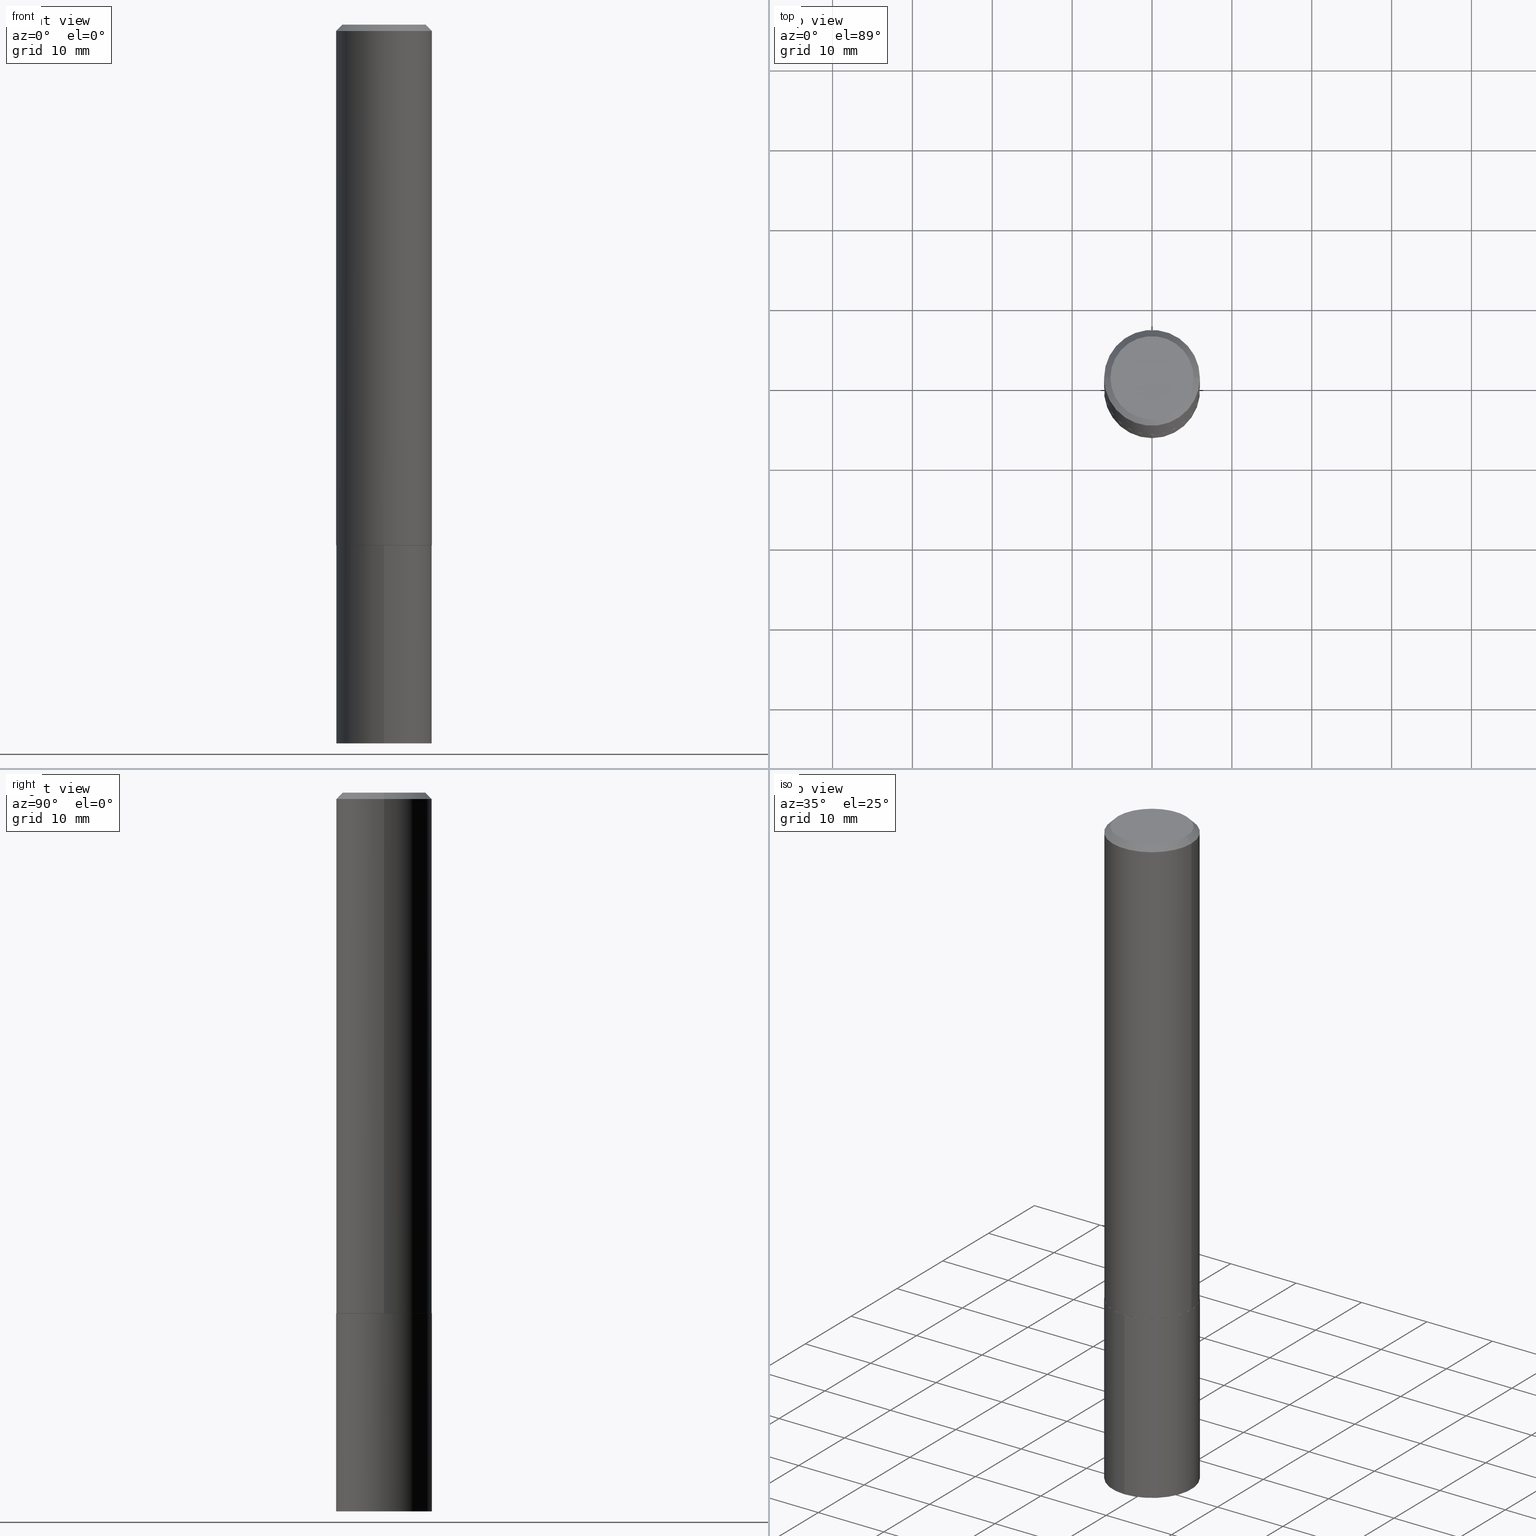
[diagram: canonical four-view strip — front | top / right | iso, engineering-drawing reading convention]
A machine part, canonical four-view strip (front | top / right | iso — engineering-drawing reading convention). The complete STEP part file that produces these views, byte-faithful:
ISO-10303-21;
HEADER;
FILE_DESCRIPTION (( 'STEP AP203' ),
    '1' );
FILE_NAME ('67167.STEP',
    '2024-04-23T12:52:20',
    ( '' ),
    ( '' ),
    'SwSTEP 2.0',
    'SolidWorks 2023',
    '' );
FILE_SCHEMA (( 'CONFIG_CONTROL_DESIGN' ));
ENDSEC;

DATA;
#1 = APPLICATION_CONTEXT ( 'configuration controlled 3d designs of mechanical parts and assemblies' ) ;
#2 = DIRECTION ( 'NONE',  ( 1.000000000000000000, -6.982962677686266711E-15, 4.876176775795936353E-29 ) ) ;
#3 = APPROVAL ( #321, 'UNSPECIFIED' ) ;
#4 = EDGE_CURVE ( 'NONE', #197, #20, #45, .T. ) ;
#5 = DIRECTION ( 'NONE',  ( -2.447102614353339399E-29, 3.489141632555693023E-15, 1.000000000000000000 ) ) ;
#6 = CARTESIAN_POINT ( 'NONE',  ( 0.2362000000000002709, -1.061131008501208223E-14, -2.566799999999999304 ) ) ;
#7 = CYLINDRICAL_SURFACE ( 'NONE', #44, 0.2361999999999999933 ) ;
#8 = EDGE_CURVE ( 'NONE', #286, #200, #307, .T. ) ;
#9 = ORGANIZATION ( 'UNSPECIFIED', 'UNSPECIFIED', '' ) ;
#10 = DIRECTION ( 'NONE',  ( 1.000000000000000000, -6.982962677686266711E-15, 4.876176775795936353E-29 ) ) ;
#11 = CARTESIAN_POINT ( 'NONE',  ( 1.678301941865443563E-15, 0.2361999999999910838, -2.567300000000000804 ) ) ;
#12 = ORIENTED_EDGE ( 'NONE', *, *, #157, .T. ) ;
#13 = CARTESIAN_POINT ( 'NONE',  ( 0.2362000000000002709, -1.061131008501208223E-14, -2.566799999999999304 ) ) ;
#14 = DIRECTION ( 'NONE',  ( -1.000000000000000000, 6.982962677686266711E-15, 0.000000000000000000 ) ) ;
#15 = ORIENTED_EDGE ( 'NONE', *, *, #341, .T. ) ;
#16 = CIRCLE ( 'NONE', #24, 0.2361999999999999933 ) ;
#17 = CALENDAR_DATE ( 2024, 23, 4 ) ;
#18 = ORIENTED_EDGE ( 'NONE', *, *, #247, .F. ) ;
#19 = CALENDAR_DATE ( 2024, 23, 4 ) ;
#20 = VERTEX_POINT ( 'NONE', #248 ) ;
#21 = MECHANICAL_CONTEXT ( 'NONE', #1, 'mechanical' ) ;
#22 = DATE_TIME_ROLE ( 'creation_date' ) ;
#23 = EDGE_CURVE ( 'NONE', #197, #127, #275, .T. ) ;
#24 = AXIS2_PLACEMENT_3D ( 'NONE', #28, #333, #208 ) ;
#25 = ORIENTED_EDGE ( 'NONE', *, *, #362, .T. ) ;
#26 = DIRECTION ( 'NONE',  ( -0.7071067811865453523, 2.468850131082234184E-15, -0.7071067811865496822 ) ) ;
#27 = APPLICATION_CONTEXT ( 'configuration controlled 3d designs of mechanical parts and assemblies' ) ;
#28 = CARTESIAN_POINT ( 'NONE',  ( 7.642090019328599159E-31, -1.091087918388489774E-16, -0.03125000000000019429 ) ) ;
#29 = FACE_OUTER_BOUND ( 'NONE', #262, .T. ) ;
#30 = DIRECTION ( 'NONE',  ( -6.982962677686265922E-15, -1.000000000000000000, 4.626330217890369336E-15 ) ) ;
#31 = PERSON ( 'UNSPECIFIED', 'UNSPECIFIED', 'UNSPECIFIED', ('UNSPECIFIED'), ('UNSPECIFIED'), ('UNSPECIFIED') ) ;
#32 = CIRCLE ( 'NONE', #238, 0.2361999999999999933 ) ;
#33 = VECTOR ( 'NONE', #55, 39.37007874015748143 ) ;
#34 = DIRECTION ( 'NONE',  ( -2.447102614353339399E-29, 3.489141632555692628E-15, 1.000000000000000000 ) ) ;
#35 = DIRECTION ( 'NONE',  ( -2.447102614353339399E-29, 3.489141632555693023E-15, 1.000000000000000000 ) ) ;
#36 = CC_DESIGN_DATE_AND_TIME_ASSIGNMENT ( #231, #348, ( #252 ) ) ;
#37 = DIRECTION ( 'NONE',  ( 2.438088387897960049E-29, -3.491481338843145188E-15, -1.000000000000000000 ) ) ;
#38 = CARTESIAN_POINT ( 'NONE',  ( -1.649375784469409356E-15, -0.2362000000000123445, -3.543299999999999894 ) ) ;
#39 = APPROVAL_STATUS ( 'not_yet_approved' ) ;
#40 = ORIENTED_EDGE ( 'NONE', *, *, #230, .F. ) ;
#41 = CALENDAR_DATE ( 2024, 23, 4 ) ;
#42 = EDGE_CURVE ( 'NONE', #286, #20, #326, .T. ) ;
#43 =( NAMED_UNIT ( * ) SI_UNIT ( $, .STERADIAN. ) SOLID_ANGLE_UNIT ( ) );
#44 = AXIS2_PLACEMENT_3D ( 'NONE', #99, #219, #337 ) ;
#45 = LINE ( 'NONE', #89, #291 ) ;
#46 = LOCAL_TIME ( 8, 52, 20.00000000000000000, #314 ) ;
#47 = DIRECTION ( 'NONE',  ( -2.447102614353339399E-29, 3.489141632555693023E-15, 1.000000000000000000 ) ) ;
#48 = CYLINDRICAL_SURFACE ( 'NONE', #249, 0.2362000000000001321 ) ;
#49 = PRODUCT_DEFINITION ( 'UNKNOWN', '', #153, #90 ) ;
#50 = ADVANCED_FACE ( 'NONE', ( #303 ), #48, .T. ) ;
#51 = DIRECTION ( 'NONE',  ( -2.447102614353339399E-29, 3.489141632555692628E-15, 1.000000000000000000 ) ) ;
#52 = CYLINDRICAL_SURFACE ( 'NONE', #181, 0.2362000000000001321 ) ;
#53 = ADVANCED_FACE ( 'NONE', ( #273 ), #52, .T. ) ;
#54 = CARTESIAN_POINT ( 'NONE',  ( -1.178467787315321149E-46, 1.682539673960460649E-32, 4.818985154644839761E-18 ) ) ;
#55 = DIRECTION ( 'NONE',  ( -2.447102614353339399E-29, 3.489141632555692628E-15, 1.000000000000000000 ) ) ;
#56 = ORIENTED_EDGE ( 'NONE', *, *, #23, .F. ) ;
#57 = LINE ( 'NONE', #13, #132 ) ;
#58 = EDGE_CURVE ( 'NONE', #349, #96, #152, .T. ) ;
#59 = PERSON_AND_ORGANIZATION ( #31, #9 ) ;
#60 = ORIENTED_EDGE ( 'NONE', *, *, #120, .F. ) ;
#61 = CIRCLE ( 'NONE', #259, 0.2361999999999999933 ) ;
#62 = EDGE_LOOP ( 'NONE', ( #195, #212, #76, #135 ) ) ;
#63 = PERSON_AND_ORGANIZATION ( #31, #9 ) ;
#64 = COORDINATED_UNIVERSAL_TIME_OFFSET ( 5, 0, .BEHIND. ) ;
#65 = PERSON_AND_ORGANIZATION_ROLE ( 'creator' ) ;
#66 = VECTOR ( 'NONE', #179, 39.37007874015748143 ) ;
#67 = CARTESIAN_POINT ( 'NONE',  ( -0.2362000000000001321, 1.678301941865357577E-15, -1.161852468318209457E-29 ) ) ;
#68 = LOCAL_TIME ( 8, 52, 20.00000000000000000, #290 ) ;
#69 = EDGE_CURVE ( 'NONE', #127, #197, #242, .T. ) ;
#70 = DIRECTION ( 'NONE',  ( 2.445468806185136597E-29, -3.491481338843145583E-15, -1.000000000000000000 ) ) ;
#71 = ORIENTED_EDGE ( 'NONE', *, *, #322, .T. ) ;
#72 = ORIENTED_EDGE ( 'NONE', *, *, #58, .T. ) ;
#73 = DIRECTION ( 'NONE',  ( 1.000000000000000000, -6.982962677686265922E-15, 0.000000000000000000 ) ) ;
#74 = CC_DESIGN_SECURITY_CLASSIFICATION ( #252, ( #153 ) ) ;
#75 = CARTESIAN_POINT ( 'NONE',  ( 6.277029331716007931E-29, -8.961934300542585708E-15, -2.566799999999999304 ) ) ;
#76 = ORIENTED_EDGE ( 'NONE', *, *, #341, .F. ) ;
#77 = APPROVAL ( #39, 'UNSPECIFIED' ) ;
#78 = DIMENSIONAL_EXPONENTS ( 1.000000000000000000, 0.000000000000000000, 0.000000000000000000, 0.000000000000000000, 0.000000000000000000, 0.000000000000000000, 0.000000000000000000 ) ;
#79 = LINE ( 'NONE', #192, #33 ) ;
#80 = DIRECTION ( 'NONE',  ( 2.445468806185136597E-29, -3.491481338843145583E-15, -1.000000000000000000 ) ) ;
#81 = CARTESIAN_POINT ( 'NONE',  ( -1.649375784469433022E-15, -0.2362000000000089306, -2.567299999999998583 ) ) ;
#82 = DIRECTION ( 'NONE',  ( 1.000000000000000000, -6.982962677686265133E-15, 0.000000000000000000 ) ) ;
#83 = DIRECTION ( 'NONE',  ( 1.000000000000000000, 0.000000000000000000, 0.000000000000000000 ) ) ;
#84 = ORIENTED_EDGE ( 'NONE', *, *, #85, .F. ) ;
#85 = EDGE_CURVE ( 'NONE', #241, #330, #327, .T. ) ;
#86 = AXIS2_PLACEMENT_3D ( 'NONE', #234, #187, #104 ) ;
#87 = CALENDAR_DATE ( 2024, 23, 4 ) ;
#88 = DIRECTION ( 'NONE',  ( -2.445468806185136877E-29, 3.491481338843145188E-15, 1.000000000000000000 ) ) ;
#89 = CARTESIAN_POINT ( 'NONE',  ( -0.2361999999999999933, 1.540266992630647030E-15, -0.03125000000000019429 ) ) ;
#90 = DESIGN_CONTEXT ( 'detailed design', #27, 'design' ) ;
#91 = CC_DESIGN_PERSON_AND_ORGANIZATION_ASSIGNMENT ( #143, #65, ( #153 ) ) ;
#92 = CONICAL_SURFACE ( 'NONE', #266, 0.2362000000000002709, 0.7853981633969702170 ) ;
#93 = LINE ( 'NONE', #176, #66 ) ;
#94 = AXIS2_PLACEMENT_3D ( 'NONE', #148, #97, #73 ) ;
#95 = CARTESIAN_POINT ( 'NONE',  ( 6.278252066119100733E-29, -8.963680041212008000E-15, -2.567299999999999471 ) ) ;
#96 = VERTEX_POINT ( 'NONE', #124 ) ;
#97 = DIRECTION ( 'NONE',  ( -2.445468806185136597E-29, 3.491481338843145583E-15, 1.000000000000000000 ) ) ;
#98 =( LENGTH_UNIT ( ) NAMED_UNIT ( * ) SI_UNIT ( $, .METRE. ) );
#99 = CARTESIAN_POINT ( 'NONE',  ( 6.278252066119100733E-29, -8.963680041212008000E-15, -2.567299999999999471 ) ) ;
#100 = CLOSED_SHELL ( 'NONE', ( #151, #50, #178, #255, #213, #53, #311, #365 ) ) ;
#101 = DIRECTION ( 'NONE',  ( -6.982962677686265922E-15, -1.000000000000000000, 4.626330217890369336E-15 ) ) ;
#102 = AXIS2_PLACEMENT_3D ( 'NONE', #224, #80, #14 ) ;
#103 = FACE_OUTER_BOUND ( 'NONE', #305, .T. ) ;
#104 = DIRECTION ( 'NONE',  ( 1.000000000000000000, -6.982962677686265133E-15, 0.000000000000000000 ) ) ;
#105 = ADVANCED_FACE ( 'NONE', ( #103 ), #158, .F. ) ;
#106 = FACE_OUTER_BOUND ( 'NONE', #189, .T. ) ;
#107 = PERSON_AND_ORGANIZATION ( #31, #9 ) ;
#108 = EDGE_LOOP ( 'NONE', ( #298, #56, #329, #263 ) ) ;
#109 = APPLICATION_PROTOCOL_DEFINITION ( 'international standard', 'config_control_design', 1994, #1 ) ;
#110 = ORIENTED_EDGE ( 'NONE', *, *, #300, .F. ) ;
#111 = ADVANCED_FACE ( 'NONE', ( #173 ), #271, .F. ) ;
#112 = ORIENTED_EDGE ( 'NONE', *, *, #69, .F. ) ;
#113 = APPROVAL_DATE_TIME ( #293, #77 ) ;
#114 = ORIENTED_EDGE ( 'NONE', *, *, #85, .T. ) ;
#115 = ORIENTED_EDGE ( 'NONE', *, *, #69, .T. ) ;
#116 = PERSON_AND_ORGANIZATION_ROLE ( 'creator' ) ;
#117 = ORIENTED_EDGE ( 'NONE', *, *, #247, .T. ) ;
#118 = CC_DESIGN_PERSON_AND_ORGANIZATION_ASSIGNMENT ( #169, #345, ( #252 ) ) ;
#119 = AXIS2_PLACEMENT_3D ( 'NONE', #128, #70, #154 ) ;
#120 = EDGE_CURVE ( 'NONE', #20, #232, #16, .T. ) ;
#121 = DIRECTION ( 'NONE',  ( -2.445468806185136597E-29, 3.491481338843145583E-15, 1.000000000000000000 ) ) ;
#122 = CARTESIAN_POINT ( 'NONE',  ( 0.2049499999999999933, -1.567808741777880040E-15, 4.818985154655325294E-18 ) ) ;
#123 = CARTESIAN_POINT ( 'NONE',  ( 6.278252066119100733E-29, -8.963680041212008000E-15, -2.567299999999999471 ) ) ;
#124 = CARTESIAN_POINT ( 'NONE',  ( 1.678301941865431139E-15, 0.2361999999999876421, -3.543300000000002115 ) ) ;
#125 = PRODUCT_DEFINITION_SHAPE ( 'NONE', 'NONE',  #49 ) ;
#126 = FACE_OUTER_BOUND ( 'NONE', #366, .T. ) ;
#127 = VERTEX_POINT ( 'NONE', #122 ) ;
#128 = CARTESIAN_POINT ( 'NONE',  ( 7.642090019328599159E-31, -1.091087918388489774E-16, -0.03125000000000019429 ) ) ;
#129 = PRODUCT_RELATED_PRODUCT_CATEGORY ( 'detail', '', ( #180 ) ) ;
#130 = CARTESIAN_POINT ( 'NONE',  ( -0.2362000000000002709, -7.283632358677226158E-15, -2.566799999999999304 ) ) ;
#131 = EDGE_LOOP ( 'NONE', ( #170, #137, #71, #60 ) ) ;
#132 = VECTOR ( 'NONE', #343, 39.37007874015748854 ) ;
#133 = EDGE_CURVE ( 'NONE', #141, #220, #159, .T. ) ;
#134 = CARTESIAN_POINT ( 'NONE',  ( -0.2357000000000005757, -7.286281585851336571E-15, -2.567299999999999471 ) ) ;
#135 = ORIENTED_EDGE ( 'NONE', *, *, #322, .F. ) ;
#136 = FACE_OUTER_BOUND ( 'NONE', #108, .T. ) ;
#137 = ORIENTED_EDGE ( 'NONE', *, *, #8, .T. ) ;
#138 = PERSON_AND_ORGANIZATION_ROLE ( 'design_owner' ) ;
#139 = VECTOR ( 'NONE', #34, 39.37007874015748143 ) ;
#140 = DIRECTION ( 'NONE',  ( 0.000000000000000000, 0.000000000000000000, 1.000000000000000000 ) ) ;
#141 = VERTEX_POINT ( 'NONE', #214 ) ;
#142 = AXIS2_PLACEMENT_3D ( 'NONE', #123, #5, #30 ) ;
#143 = PERSON_AND_ORGANIZATION ( #31, #9 ) ;
#144 = DIRECTION ( 'NONE',  ( 1.000000000000000000, -6.982962677686265133E-15, 0.000000000000000000 ) ) ;
#145 = CARTESIAN_POINT ( 'NONE',  ( -1.178467787315321149E-46, 1.682539673960460649E-32, 4.818985154644839761E-18 ) ) ;
#146 = VECTOR ( 'NONE', #299, 39.37007874015748143 ) ;
#147 = APPROVAL_PERSON_ORGANIZATION ( #167, #3, #264 ) ;
#148 = CARTESIAN_POINT ( 'NONE',  ( 6.278252066119100733E-29, -8.963680041212008000E-15, -2.567299999999999471 ) ) ;
#149 = CARTESIAN_POINT ( 'NONE',  ( 6.278252066119100733E-29, -8.963680041212008000E-15, -2.567299999999999471 ) ) ;
#150 = APPROVAL ( #294, 'UNSPECIFIED' ) ;
#151 = ADVANCED_FACE ( 'NONE', ( #308 ), #174, .T. ) ;
#152 = CIRCLE ( 'NONE', #323, 0.2361999999999999933 ) ;
#153 = PRODUCT_DEFINITION_FORMATION_WITH_SPECIFIED_SOURCE ( 'ANY', '', #180, .NOT_KNOWN. ) ;
#154 = DIRECTION ( 'NONE',  ( -1.000000000000000000, 6.982962677686266711E-15, 0.000000000000000000 ) ) ;
#155 = CARTESIAN_POINT ( 'NONE',  ( 0.000000000000000000, 0.000000000000000000, 0.000000000000000000 ) ) ;
#156 = DIRECTION ( 'NONE',  ( 1.000000000000000000, -6.982962677686265922E-15, 0.000000000000000000 ) ) ;
#157 = EDGE_CURVE ( 'NONE', #127, #232, #93, .T. ) ;
#158 = PLANE ( 'NONE',  #295 ) ;
#159 = CIRCLE ( 'NONE', #301, 0.2361999999999999933 ) ;
#160 = VECTOR ( 'NONE', #183, 39.37007874015748854 ) ;
#161 = ORIENTED_EDGE ( 'NONE', *, *, #362, .F. ) ;
#162 = CARTESIAN_POINT ( 'NONE',  ( 6.278252066119100733E-29, -8.963680041212008000E-15, -2.567299999999999471 ) ) ;
#163 = CARTESIAN_POINT ( 'NONE',  ( 0.000000000000000000, 0.000000000000000000, 0.000000000000000000 ) ) ;
#164 = SECURITY_CLASSIFICATION_LEVEL ( 'unclassified' ) ;
#165 = ORIENTED_EDGE ( 'NONE', *, *, #201, .F. ) ;
#166 = COORDINATED_UNIVERSAL_TIME_OFFSET ( 5, 0, .BEHIND. ) ;
#167 = PERSON_AND_ORGANIZATION ( #31, #9 ) ;
#168 = ADVANCED_FACE ( 'NONE', ( #29 ), #277, .T. ) ;
#169 = PERSON_AND_ORGANIZATION ( #31, #9 ) ;
#170 = ORIENTED_EDGE ( 'NONE', *, *, #42, .F. ) ;
#171 = AXIS2_PLACEMENT_3D ( 'NONE', #95, #215, #156 ) ;
#172 = CARTESIAN_POINT ( 'NONE',  ( 6.277029331716007931E-29, -8.961934300542585708E-15, -2.566799999999999304 ) ) ;
#173 = FACE_OUTER_BOUND ( 'NONE', #315, .T. ) ;
#174 = CONICAL_SURFACE ( 'NONE', #119, 0.2361999999999999933, 0.7853981633974452814 ) ;
#175 = CIRCLE ( 'NONE', #354, 0.2362000000000002709 ) ;
#176 = CARTESIAN_POINT ( 'NONE',  ( 0.2361999999999999933, -1.729558418912484771E-15, -0.03125000000000019429 ) ) ;
#177 = CC_DESIGN_PERSON_AND_ORGANIZATION_ASSIGNMENT ( #265, #116, ( #49 ) ) ;
#178 = ADVANCED_FACE ( 'NONE', ( #126 ), #92, .T. ) ;
#179 = DIRECTION ( 'NONE',  ( 0.7071067811865453523, -7.319954787623248157E-15, -0.7071067811865496822 ) ) ;
#180 = PRODUCT ( '67167', '67167', '', ( #21 ) ) ;
#181 = AXIS2_PLACEMENT_3D ( 'NONE', #155, #276, #2 ) ;
#182 =( GEOMETRIC_REPRESENTATION_CONTEXT ( 3 ) GLOBAL_UNCERTAINTY_ASSIGNED_CONTEXT ( ( #191 ) ) GLOBAL_UNIT_ASSIGNED_CONTEXT ( ( #193, #353, #43 ) ) REPRESENTATION_CONTEXT ( 'NONE', 'WORKASPACE' ) );
#183 = DIRECTION ( 'NONE',  ( -0.7071067811862092878, 7.493145998869131426E-15, 0.7071067811868855246 ) ) ;
#184 = DIRECTION ( 'NONE',  ( -2.447102614353339399E-29, 3.489141632555693023E-15, 1.000000000000000000 ) ) ;
#185 = EDGE_CURVE ( 'NONE', #96, #349, #61, .T. ) ;
#186 = CARTESIAN_POINT ( 'NONE',  ( -5.892338936576605744E-47, 8.412698369802303245E-33, 2.409492577322419881E-18 ) ) ;
#187 = DIRECTION ( 'NONE',  ( -2.445468806185136597E-29, 3.491481338843145583E-15, 1.000000000000000000 ) ) ;
#188 = DIRECTION ( 'NONE',  ( -2.445468806185136597E-29, 3.491481338843145583E-15, 1.000000000000000000 ) ) ;
#189 = EDGE_LOOP ( 'NONE', ( #165, #84 ) ) ;
#190 = ORIENTED_EDGE ( 'NONE', *, *, #201, .T. ) ;
#191 = UNCERTAINTY_MEASURE_WITH_UNIT (LENGTH_MEASURE( 1.000000000000000082E-05 ), #193, 'distance_accuracy_value', 'NONE');
#192 = CARTESIAN_POINT ( 'NONE',  ( 1.678301941865419306E-15, 0.2361999999999910560, -2.567300000000000804 ) ) ;
#193 =( CONVERSION_BASED_UNIT ( 'INCH', #240 ) LENGTH_UNIT ( ) NAMED_UNIT ( #78 ) );
#194 = DATE_AND_TIME ( #41, #328 ) ;
#195 = ORIENTED_EDGE ( 'NONE', *, *, #285, .T. ) ;
#196 = PERSON_AND_ORGANIZATION ( #31, #9 ) ;
#197 = VERTEX_POINT ( 'NONE', #339 ) ;
#198 = AXIS2_PLACEMENT_3D ( 'NONE', #54, #279, #340 ) ;
#199 = APPROVAL_PERSON_ORGANIZATION ( #59, #150, #358 ) ;
#200 = VERTEX_POINT ( 'NONE', #6 ) ;
#201 = EDGE_CURVE ( 'NONE', #330, #241, #218, .T. ) ;
#202 = APPROVAL_DATE_TIME ( #235, #150 ) ;
#203 = FACE_OUTER_BOUND ( 'NONE', #317, .T. ) ;
#204 = AXIS2_PLACEMENT_3D ( 'NONE', #145, #121, #207 ) ;
#205 = PLANE ( 'NONE',  #269 ) ;
#206 = DIRECTION ( 'NONE',  ( -2.445468806185136597E-29, 3.491481338843145583E-15, 1.000000000000000000 ) ) ;
#207 = DIRECTION ( 'NONE',  ( 1.000000000000000000, -6.982962677686266711E-15, 4.876118559169178830E-29 ) ) ;
#208 = DIRECTION ( 'NONE',  ( 1.000000000000000000, -6.982962677686266711E-15, 0.000000000000000000 ) ) ;
#209 = AXIS2_PLACEMENT_3D ( 'NONE', #280, #223, #316 ) ;
#210 = DIRECTION ( 'NONE',  ( 2.447102614353339399E-29, -3.489141632555692628E-15, -1.000000000000000000 ) ) ;
#211 = CC_DESIGN_PERSON_AND_ORGANIZATION_ASSIGNMENT ( #196, #138, ( #180 ) ) ;
#212 = ORIENTED_EDGE ( 'NONE', *, *, #42, .T. ) ;
#213 = ADVANCED_FACE ( 'NONE', ( #257 ), #363, .T. ) ;
#214 = CARTESIAN_POINT ( 'NONE',  ( -1.649375784469433022E-15, -0.2362000000000089306, -2.567299999999998583 ) ) ;
#215 = DIRECTION ( 'NONE',  ( -2.445468806185136597E-29, 3.491481338843145583E-15, 1.000000000000000000 ) ) ;
#216 = ORIENTED_EDGE ( 'NONE', *, *, #360, .F. ) ;
#217 = DIRECTION ( 'NONE',  ( -2.445468806185136597E-29, 3.491481338843145583E-15, 1.000000000000000000 ) ) ;
#218 = CIRCLE ( 'NONE', #94, 0.2357000000000005757 ) ;
#219 = DIRECTION ( 'NONE',  ( -2.447102614353339399E-29, 3.489141632555693023E-15, 1.000000000000000000 ) ) ;
#220 = VERTEX_POINT ( 'NONE', #11 ) ;
#221 = CONICAL_SURFACE ( 'NONE', #102, 0.2361999999999999933, 0.7853981633974452814 ) ;
#222 = CARTESIAN_POINT ( 'NONE',  ( 6.278252066119100733E-29, -8.963680041212008000E-15, -2.567299999999999471 ) ) ;
#223 = DIRECTION ( 'NONE',  ( -2.445468806185136597E-29, 3.491481338843145583E-15, 1.000000000000000000 ) ) ;
#224 = CARTESIAN_POINT ( 'NONE',  ( 7.642090019328599159E-31, -1.091087918388489774E-16, -0.03125000000000019429 ) ) ;
#225 = EDGE_LOOP ( 'NONE', ( #161, #114, #117, #338 ) ) ;
#226 = LINE ( 'NONE', #359, #243 ) ;
#227 = PERSON_AND_ORGANIZATION_ROLE ( 'design_supplier' ) ;
#228 = AXIS2_PLACEMENT_3D ( 'NONE', #253, #51, #274 ) ;
#229 = CC_DESIGN_DATE_AND_TIME_ASSIGNMENT ( #194, #22, ( #49 ) ) ;
#230 = EDGE_CURVE ( 'NONE', #349, #141, #347, .T. ) ;
#231 = DATE_AND_TIME ( #17, #68 ) ;
#232 = VERTEX_POINT ( 'NONE', #342 ) ;
#233 = MANIFOLD_SOLID_BREP ( 'Body-Move/Copy2[2]', #100 ) ;
#234 = CARTESIAN_POINT ( 'NONE',  ( 6.277029331716007931E-29, -8.961934300542585708E-15, -2.566799999999999304 ) ) ;
#235 = DATE_AND_TIME ( #87, #46 ) ;
#236 = APPROVAL_DATE_TIME ( #261, #3 ) ;
#237 = ORIENTED_EDGE ( 'NONE', *, *, #23, .T. ) ;
#238 = AXIS2_PLACEMENT_3D ( 'NONE', #222, #35, #282 ) ;
#239 = MANIFOLD_SOLID_BREP ( 'Body-Move/Copy2[1]', #268 ) ;
#240 = LENGTH_MEASURE_WITH_UNIT ( LENGTH_MEASURE( 0.02539999999999999897 ), #98 );
#241 = VERTEX_POINT ( 'NONE', #134 ) ;
#242 = CIRCLE ( 'NONE', #198, 0.2049499999999999933 ) ;
#243 = VECTOR ( 'NONE', #88, 39.37007874015748143 ) ;
#244 = CC_DESIGN_PERSON_AND_ORGANIZATION_ASSIGNMENT ( #107, #227, ( #153 ) ) ;
#245 = DIRECTION ( 'NONE',  ( -2.447102614353339399E-29, 3.489141632555693023E-15, 1.000000000000000000 ) ) ;
#246 = SHAPE_DEFINITION_REPRESENTATION ( #125, #352 ) ;
#247 = EDGE_CURVE ( 'NONE', #330, #200, #57, .T. ) ;
#248 = CARTESIAN_POINT ( 'NONE',  ( -0.2361999999999999933, -2.857219604325358644E-15, -0.03125000000000019429 ) ) ;
#249 = AXIS2_PLACEMENT_3D ( 'NONE', #270, #217, #10 ) ;
#250 = DIRECTION ( 'NONE',  ( 1.000000000000000000, -6.982962677686265133E-15, 0.000000000000000000 ) ) ;
#251 = ORIENTED_EDGE ( 'NONE', *, *, #285, .F. ) ;
#252 = SECURITY_CLASSIFICATION ( '', '', #164 ) ;
#253 = CARTESIAN_POINT ( 'NONE',  ( -2.781775092303385267E-29, -2.876384168897386522E-14, -3.543300000000000338 ) ) ;
#254 = ORIENTED_EDGE ( 'NONE', *, *, #185, .F. ) ;
#255 = ADVANCED_FACE ( 'NONE', ( #106 ), #312, .F. ) ;
#256 = EDGE_LOOP ( 'NONE', ( #237, #115 ) ) ;
#257 = FACE_OUTER_BOUND ( 'NONE', #225, .T. ) ;
#258 = COORDINATED_UNIVERSAL_TIME_OFFSET ( 5, 0, .BEHIND. ) ;
#259 = AXIS2_PLACEMENT_3D ( 'NONE', #331, #47, #101 ) ;
#260 = LOCAL_TIME ( 8, 52, 20.00000000000000000, #166 ) ;
#261 = DATE_AND_TIME ( #318, #364 ) ;
#262 = EDGE_LOOP ( 'NONE', ( #72, #287, #351, #40 ) ) ;
#263 = ORIENTED_EDGE ( 'NONE', *, *, #120, .T. ) ;
#264 = APPROVAL_ROLE ( '' ) ;
#265 = PERSON_AND_ORGANIZATION ( #31, #9 ) ;
#266 = AXIS2_PLACEMENT_3D ( 'NONE', #75, #278, #250 ) ;
#267 = CC_DESIGN_APPROVAL ( #150, ( #153 ) ) ;
#268 = CLOSED_SHELL ( 'NONE', ( #168, #111, #325, #105 ) ) ;
#269 = AXIS2_PLACEMENT_3D ( 'NONE', #186, #37, #297 ) ;
#270 = CARTESIAN_POINT ( 'NONE',  ( 0.000000000000000000, 0.000000000000000000, 0.000000000000000000 ) ) ;
#271 = PLANE ( 'NONE',  #228 ) ;
#272 = DIRECTION ( 'NONE',  ( -6.982962677686265922E-15, -1.000000000000000000, 4.626330217890369336E-15 ) ) ;
#273 = FACE_OUTER_BOUND ( 'NONE', #131, .T. ) ;
#274 = DIRECTION ( 'NONE',  ( -6.982962677686265922E-15, -1.000000000000000000, 3.489141632555692628E-15 ) ) ;
#275 = CIRCLE ( 'NONE', #204, 0.2049499999999999933 ) ;
#276 = DIRECTION ( 'NONE',  ( -2.445468806185136597E-29, 3.491481338843145583E-15, 1.000000000000000000 ) ) ;
#277 = CYLINDRICAL_SURFACE ( 'NONE', #142, 0.2361999999999999933 ) ;
#278 = DIRECTION ( 'NONE',  ( -2.445468806185136597E-29, 3.491481338843145583E-15, 1.000000000000000000 ) ) ;
#279 = DIRECTION ( 'NONE',  ( -2.445468806185136597E-29, 3.491481338843145583E-15, 1.000000000000000000 ) ) ;
#280 = CARTESIAN_POINT ( 'NONE',  ( 7.642090019328599159E-31, -1.091087918388489774E-16, -0.03125000000000019429 ) ) ;
#281 = ORIENTED_EDGE ( 'NONE', *, *, #4, .F. ) ;
#282 = DIRECTION ( 'NONE',  ( -6.982962677686265922E-15, -1.000000000000000000, 4.626330217890369336E-15 ) ) ;
#283 = CARTESIAN_POINT ( 'NONE',  ( 6.278252066119100733E-29, -8.963680041212008000E-15, -2.567299999999999471 ) ) ;
#284 = CC_DESIGN_APPROVAL ( #77, ( #252 ) ) ;
#285 = EDGE_CURVE ( 'NONE', #200, #286, #175, .T. ) ;
#286 = VERTEX_POINT ( 'NONE', #130 ) ;
#287 = ORIENTED_EDGE ( 'NONE', *, *, #360, .T. ) ;
#288 = DIRECTION ( 'NONE',  ( -2.438088387897960049E-29, 3.491481338843145188E-15, 1.000000000000000000 ) ) ;
#289 = DIRECTION ( 'NONE',  ( 1.000000000000000000, -6.982962677686265922E-15, 4.876176775795935793E-29 ) ) ;
#290 = COORDINATED_UNIVERSAL_TIME_OFFSET ( 5, 0, .BEHIND. ) ;
#291 = VECTOR ( 'NONE', #26, 39.37007874015748143 ) ;
#292 = ORIENTED_EDGE ( 'NONE', *, *, #58, .F. ) ;
#293 = DATE_AND_TIME ( #19, #260 ) ;
#294 = APPROVAL_STATUS ( 'not_yet_approved' ) ;
#295 = AXIS2_PLACEMENT_3D ( 'NONE', #283, #210, #332 ) ;
#296 = AXIS2_PLACEMENT_3D ( 'NONE', #163, #140, #83 ) ;
#297 = DIRECTION ( 'NONE',  ( -1.000000000000000000, 6.982962677686265922E-15, -4.876176775795935793E-29 ) ) ;
#298 = ORIENTED_EDGE ( 'NONE', *, *, #157, .F. ) ;
#299 = DIRECTION ( 'NONE',  ( -2.445468806185136877E-29, 3.491481338843145188E-15, 1.000000000000000000 ) ) ;
#300 = EDGE_CURVE ( 'NONE', #220, #141, #32, .T. ) ;
#301 = AXIS2_PLACEMENT_3D ( 'NONE', #149, #245, #272 ) ;
#302 = APPROVAL_PERSON_ORGANIZATION ( #63, #77, #350 ) ;
#303 = FACE_OUTER_BOUND ( 'NONE', #62, .T. ) ;
#304 = DIRECTION ( 'NONE',  ( -6.982962677686265922E-15, -1.000000000000000000, 4.626330217890369336E-15 ) ) ;
#305 = EDGE_LOOP ( 'NONE', ( #310, #361 ) ) ;
#306 = CARTESIAN_POINT ( 'NONE',  ( -0.2362000000000002709, -7.283632358677226158E-15, -2.566799999999999304 ) ) ;
#307 = CIRCLE ( 'NONE', #344, 0.2362000000000002709 ) ;
#308 = FACE_OUTER_BOUND ( 'NONE', #346, .T. ) ;
#309 = CARTESIAN_POINT ( 'NONE',  ( 0.2357000000000005757, -1.060956434434266467E-14, -2.567299999999999471 ) ) ;
#310 = ORIENTED_EDGE ( 'NONE', *, *, #133, .T. ) ;
#311 = ADVANCED_FACE ( 'NONE', ( #136 ), #221, .T. ) ;
#312 = PLANE ( 'NONE',  #356 ) ;
#313 = LINE ( 'NONE', #306, #160 ) ;
#314 = COORDINATED_UNIVERSAL_TIME_OFFSET ( 5, 0, .BEHIND. ) ;
#315 = EDGE_LOOP ( 'NONE', ( #292, #254 ) ) ;
#316 = DIRECTION ( 'NONE',  ( 1.000000000000000000, -6.982962677686266711E-15, 0.000000000000000000 ) ) ;
#317 = EDGE_LOOP ( 'NONE', ( #216, #319, #355, #110 ) ) ;
#318 = CALENDAR_DATE ( 2024, 23, 4 ) ;
#319 = ORIENTED_EDGE ( 'NONE', *, *, #185, .T. ) ;
#320 = APPLICATION_PROTOCOL_DEFINITION ( 'international standard', 'config_control_design', 1994, #27 ) ;
#321 = APPROVAL_STATUS ( 'not_yet_approved' ) ;
#322 = EDGE_CURVE ( 'NONE', #200, #232, #226, .T. ) ;
#323 = AXIS2_PLACEMENT_3D ( 'NONE', #336, #184, #304 ) ;
#324 = CC_DESIGN_APPROVAL ( #3, ( #49 ) ) ;
#325 = ADVANCED_FACE ( 'NONE', ( #203 ), #7, .T. ) ;
#326 = LINE ( 'NONE', #67, #146 ) ;
#327 = CIRCLE ( 'NONE', #171, 0.2357000000000005757 ) ;
#328 = LOCAL_TIME ( 8, 52, 20.00000000000000000, #64 ) ;
#329 = ORIENTED_EDGE ( 'NONE', *, *, #4, .T. ) ;
#330 = VERTEX_POINT ( 'NONE', #309 ) ;
#331 = CARTESIAN_POINT ( 'NONE',  ( 8.666624217727962385E-29, -1.236908227458636611E-14, -3.543300000000000782 ) ) ;
#332 = DIRECTION ( 'NONE',  ( 6.982962677686265922E-15, 1.000000000000000000, -3.489141632555692628E-15 ) ) ;
#333 = DIRECTION ( 'NONE',  ( -2.445468806185136597E-29, 3.491481338843145583E-15, 1.000000000000000000 ) ) ;
#334 = CIRCLE ( 'NONE', #209, 0.2361999999999999933 ) ;
#335 = CARTESIAN_POINT ( 'NONE',  ( 6.277029331716007931E-29, -8.961934300542585708E-15, -2.566799999999999304 ) ) ;
#336 = CARTESIAN_POINT ( 'NONE',  ( 8.666624217727962385E-29, -1.236908227458636611E-14, -3.543300000000000782 ) ) ;
#337 = DIRECTION ( 'NONE',  ( -6.982962677686265922E-15, -1.000000000000000000, 4.626330217890369336E-15 ) ) ;
#338 = ORIENTED_EDGE ( 'NONE', *, *, #8, .F. ) ;
#339 = CARTESIAN_POINT ( 'NONE',  ( -0.2049499999999999933, 1.485712596711223663E-15, 4.818985154634640807E-18 ) ) ;
#340 = DIRECTION ( 'NONE',  ( 1.000000000000000000, -6.982962677686266711E-15, 4.876118559169178830E-29 ) ) ;
#341 = EDGE_CURVE ( 'NONE', #232, #20, #334, .T. ) ;
#342 = CARTESIAN_POINT ( 'NONE',  ( 0.2361999999999999933, -1.758484576308345231E-15, -0.03125000000000019429 ) ) ;
#343 = DIRECTION ( 'NONE',  ( 0.7071067811862092878, -2.468850131078715470E-15, 0.7071067811868855246 ) ) ;
#344 = AXIS2_PLACEMENT_3D ( 'NONE', #172, #206, #144 ) ;
#345 = PERSON_AND_ORGANIZATION_ROLE ( 'classification_officer' ) ;
#346 = EDGE_LOOP ( 'NONE', ( #112, #12, #15, #281 ) ) ;
#347 = LINE ( 'NONE', #81, #139 ) ;
#348 = DATE_TIME_ROLE ( 'classification_date' ) ;
#349 = VERTEX_POINT ( 'NONE', #38 ) ;
#350 = APPROVAL_ROLE ( '' ) ;
#351 = ORIENTED_EDGE ( 'NONE', *, *, #133, .F. ) ;
#352 = ADVANCED_BREP_SHAPE_REPRESENTATION ( '67167', ( #239, #233, #296 ), #182 ) ;
#353 =( NAMED_UNIT ( * ) PLANE_ANGLE_UNIT ( ) SI_UNIT ( $, .RADIAN. ) );
#354 = AXIS2_PLACEMENT_3D ( 'NONE', #335, #188, #82 ) ;
#355 = ORIENTED_EDGE ( 'NONE', *, *, #230, .T. ) ;
#356 = AXIS2_PLACEMENT_3D ( 'NONE', #162, #288, #289 ) ;
#357 = FACE_OUTER_BOUND ( 'NONE', #256, .T. ) ;
#358 = APPROVAL_ROLE ( '' ) ;
#359 = CARTESIAN_POINT ( 'NONE',  ( 0.2362000000000001321, -1.649375784469497117E-15, 1.151752954443000789E-29 ) ) ;
#360 = EDGE_CURVE ( 'NONE', #96, #220, #79, .T. ) ;
#361 = ORIENTED_EDGE ( 'NONE', *, *, #300, .T. ) ;
#362 = EDGE_CURVE ( 'NONE', #241, #286, #313, .T. ) ;
#363 = CONICAL_SURFACE ( 'NONE', #86, 0.2362000000000002709, 0.7853981633969702170 ) ;
#364 = LOCAL_TIME ( 8, 52, 20.00000000000000000, #258 ) ;
#365 = ADVANCED_FACE ( 'NONE', ( #357 ), #205, .F. ) ;
#366 = EDGE_LOOP ( 'NONE', ( #190, #25, #251, #18 ) ) ;
ENDSEC;
END-ISO-10303-21;
